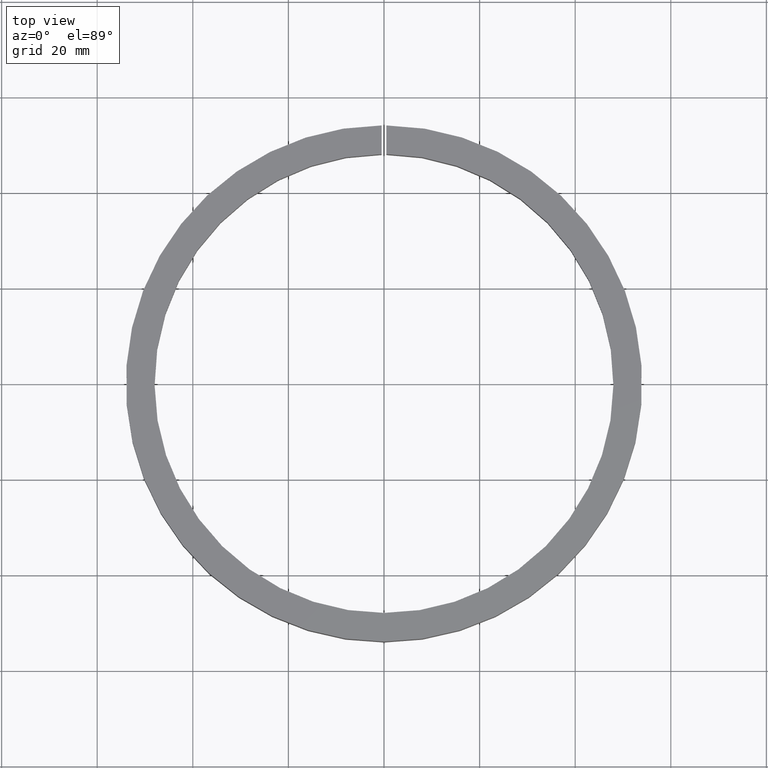
[diagram: clean part render]
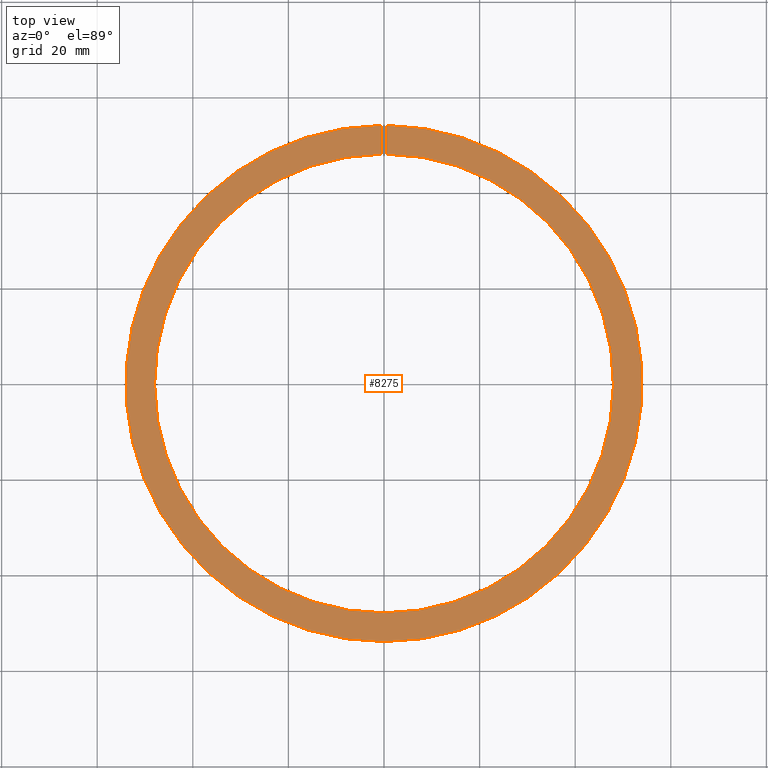
[diagram: same view with one face highlighted and labeled with its STEP entity id]
A machine part, top view. The second image highlights one B-rep face of the part: STEP entity #8275.
In plain terms, the highlighted planar face has unit normal (-0, 0, -1).
Its self-contained STEP definition (entity closure, byte-faithful):
#249 = ORIENTED_EDGE ( 'NONE', *, *, #11665, .F. ) ;
#372 = ORIENTED_EDGE ( 'NONE', *, *, #8527, .T. ) ;
#1038 = VERTEX_POINT ( 'NONE', #5693 ) ;
#1546 = LINE ( 'NONE', #1879, #6743 ) ;
#1768 = VERTEX_POINT ( 'NONE', #7676 ) ;
#1870 = DIRECTION ( 'NONE',  ( -0.0000000000000000000, -0.0000000000000000000, -1.000000000000000000 ) ) ;
#1879 = CARTESIAN_POINT ( 'NONE',  ( 0.5000000000000000000, 0.0000000000000000000, 5.999999999999996400 ) ) ;
#2295 = ORIENTED_EDGE ( 'NONE', *, *, #3252, .T. ) ;
#2335 = DIRECTION ( 'NONE',  ( -0.0000000000000000000, -0.0000000000000000000, -1.000000000000000000 ) ) ;
#2448 = CARTESIAN_POINT ( 'NONE',  ( -0.5000000000000000000, 53.99768513556853800, 5.999999999999996400 ) ) ;
#2549 = ORIENTED_EDGE ( 'NONE', *, *, #3080, .F. ) ;
#3080 = EDGE_CURVE ( 'NONE', #1038, #6396, #5966, .T. ) ;
#3252 = EDGE_CURVE ( 'NONE', #4882, #1768, #10226, .T. ) ;
#3744 = DIRECTION ( 'NONE',  ( -1.000000000000000000, 0.0000000000000000000, 0.0000000000000000000 ) ) ;
#3859 = CARTESIAN_POINT ( 'NONE',  ( 0.0000000000000000000, -48.00000000000000000, 5.999999999999996400 ) ) ;
#3870 = CARTESIAN_POINT ( 'NONE',  ( -0.5000000000000000000, 0.0000000000000000000, 5.999999999999996400 ) ) ;
#4257 = AXIS2_PLACEMENT_3D ( 'NONE', #9898, #2335, #8915 ) ;
#4812 = PLANE ( 'NONE',  #9788 ) ;
#4882 = VERTEX_POINT ( 'NONE', #12153 ) ;
#5693 = CARTESIAN_POINT ( 'NONE',  ( 0.5000000000000000000, 53.99768513556854500, 5.999999999999996400 ) ) ;
#5966 = CIRCLE ( 'NONE', #4257, 54.00000000000000000 ) ;
#6396 = VERTEX_POINT ( 'NONE', #2448 ) ;
#6612 = DIRECTION ( 'NONE',  ( 0.0000000000000000000, 1.000000000000000000, -0.0000000000000000000 ) ) ;
#6684 = DIRECTION ( 'NONE',  ( -1.000000000000000000, 0.0000000000000000000, 0.0000000000000000000 ) ) ;
#6743 = VECTOR ( 'NONE', #6612, 1000.000000000000000 ) ;
#7676 = CARTESIAN_POINT ( 'NONE',  ( -0.5000000000000000000, 47.99739576268696300, 5.999999999999996400 ) ) ;
#7722 = DIRECTION ( 'NONE',  ( 0.0000000000000000000, 1.000000000000000000, -0.0000000000000000000 ) ) ;
#8275 = ADVANCED_FACE ( 'NONE', ( #8403 ), #4812, .F. ) ;
#8403 = FACE_OUTER_BOUND ( 'NONE', #9895, .T. ) ;
#8527 = EDGE_CURVE ( 'NONE', #1768, #6396, #9844, .T. ) ;
#8646 = DIRECTION ( 'NONE',  ( -0.0000000000000000000, 0.0000000000000000000, -1.000000000000000000 ) ) ;
#8915 = DIRECTION ( 'NONE',  ( -1.000000000000000000, 0.0000000000000000000, 0.0000000000000000000 ) ) ;
#9407 = VECTOR ( 'NONE', #7722, 1000.000000000000000 ) ;
#9788 = AXIS2_PLACEMENT_3D ( 'NONE', #3859, #8646, #6684 ) ;
#9844 = LINE ( 'NONE', #3870, #9407 ) ;
#9895 = EDGE_LOOP ( 'NONE', ( #2549, #249, #2295, #372 ) ) ;
#9898 = CARTESIAN_POINT ( 'NONE',  ( 0.0000000000000000000, 0.0000000000000000000, 5.999999999999996400 ) ) ;
#10226 = CIRCLE ( 'NONE', #11417, 48.00000000000000000 ) ;
#11234 = CARTESIAN_POINT ( 'NONE',  ( 0.0000000000000000000, 0.0000000000000000000, 5.999999999999996400 ) ) ;
#11417 = AXIS2_PLACEMENT_3D ( 'NONE', #11234, #1870, #3744 ) ;
#11665 = EDGE_CURVE ( 'NONE', #4882, #1038, #1546, .T. ) ;
#12153 = CARTESIAN_POINT ( 'NONE',  ( 0.5000000000000000000, 47.99739576268696300, 5.999999999999996400 ) ) ;